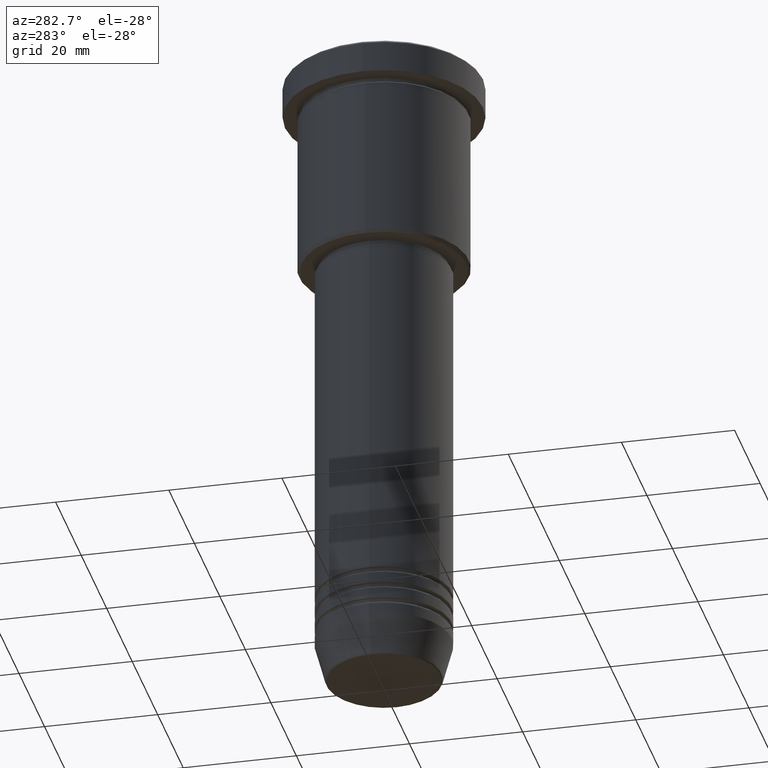
[diagram: clean part render]
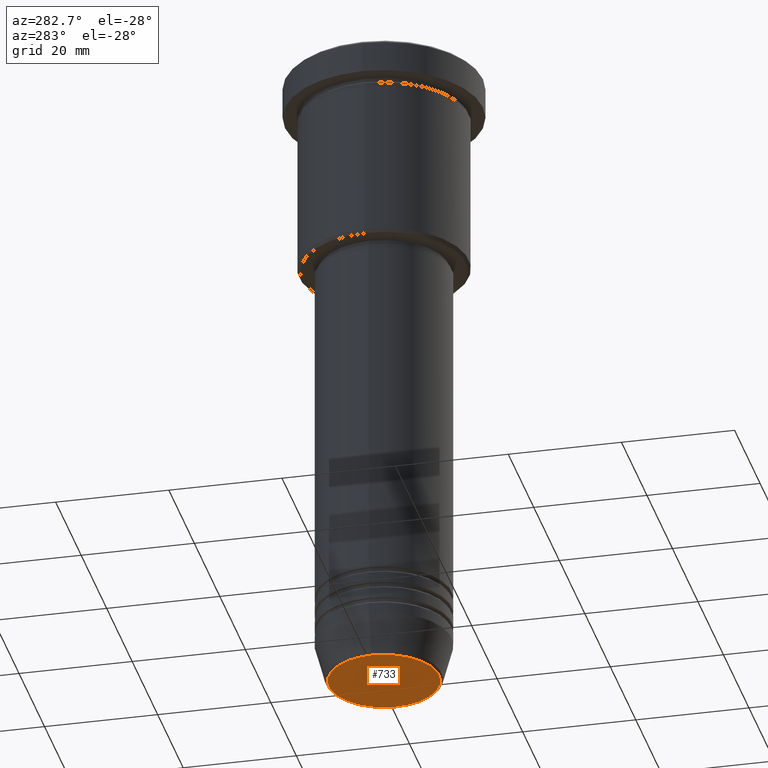
[diagram: same view with one face highlighted and labeled with its STEP entity id]
A machine part, auxiliary view. The second image highlights one B-rep face of the part: STEP entity #733.
In plain terms, the highlighted planar face has unit normal (0, -0, 1).
Its self-contained STEP definition (entity closure, byte-faithful):
#91 = DIRECTION ( 'NONE',  ( 0.000000000000000000, 0.000000000000000000, -1.000000000000000000 ) ) ;
#100 = DIRECTION ( 'NONE',  ( 1.000000000000000000, 0.000000000000000000, 0.000000000000000000 ) ) ;
#114 = CARTESIAN_POINT ( 'NONE',  ( 0.000000000000000000, 0.000000000000000000, -116.0000000000000000 ) ) ;
#118 = AXIS2_PLACEMENT_3D ( 'NONE', #114, #91, #920 ) ;
#151 = EDGE_LOOP ( 'NONE', ( #713, #438 ) ) ;
#164 = VERTEX_POINT ( 'NONE', #1108 ) ;
#177 = CIRCLE ( 'NONE', #843, 9.740692158992658278 ) ;
#268 = CIRCLE ( 'NONE', #118, 9.740692158992658278 ) ;
#317 = CARTESIAN_POINT ( 'NONE',  ( 0.000000000000000000, 0.000000000000000000, -116.0000000000000000 ) ) ;
#438 = ORIENTED_EDGE ( 'NONE', *, *, #643, .T. ) ;
#440 = VERTEX_POINT ( 'NONE', #681 ) ;
#463 = AXIS2_PLACEMENT_3D ( 'NONE', #317, #589, #1129 ) ;
#553 = DIRECTION ( 'NONE',  ( 0.000000000000000000, 0.000000000000000000, -1.000000000000000000 ) ) ;
#566 = CARTESIAN_POINT ( 'NONE',  ( 0.000000000000000000, 0.000000000000000000, -116.0000000000000000 ) ) ;
#589 = DIRECTION ( 'NONE',  ( 0.000000000000000000, -0.000000000000000000, 1.000000000000000000 ) ) ;
#598 = PLANE ( 'NONE',  #463 ) ;
#643 = EDGE_CURVE ( 'NONE', #164, #440, #268, .T. ) ;
#681 = CARTESIAN_POINT ( 'NONE',  ( 9.740692158992658278, 0.000000000000000000, -116.0000000000000000 ) ) ;
#713 = ORIENTED_EDGE ( 'NONE', *, *, #1052, .T. ) ;
#733 = ADVANCED_FACE ( 'NONE', ( #1157 ), #598, .F. ) ;
#843 = AXIS2_PLACEMENT_3D ( 'NONE', #566, #553, #100 ) ;
#920 = DIRECTION ( 'NONE',  ( 1.000000000000000000, 0.000000000000000000, 0.000000000000000000 ) ) ;
#1052 = EDGE_CURVE ( 'NONE', #440, #164, #177, .T. ) ;
#1108 = CARTESIAN_POINT ( 'NONE',  ( -9.740692158992658278, 1.222463696683474604E-15, -116.0000000000000000 ) ) ;
#1129 = DIRECTION ( 'NONE',  ( 1.000000000000000000, 0.000000000000000000, 0.000000000000000000 ) ) ;
#1157 = FACE_OUTER_BOUND ( 'NONE', #151, .T. ) ;